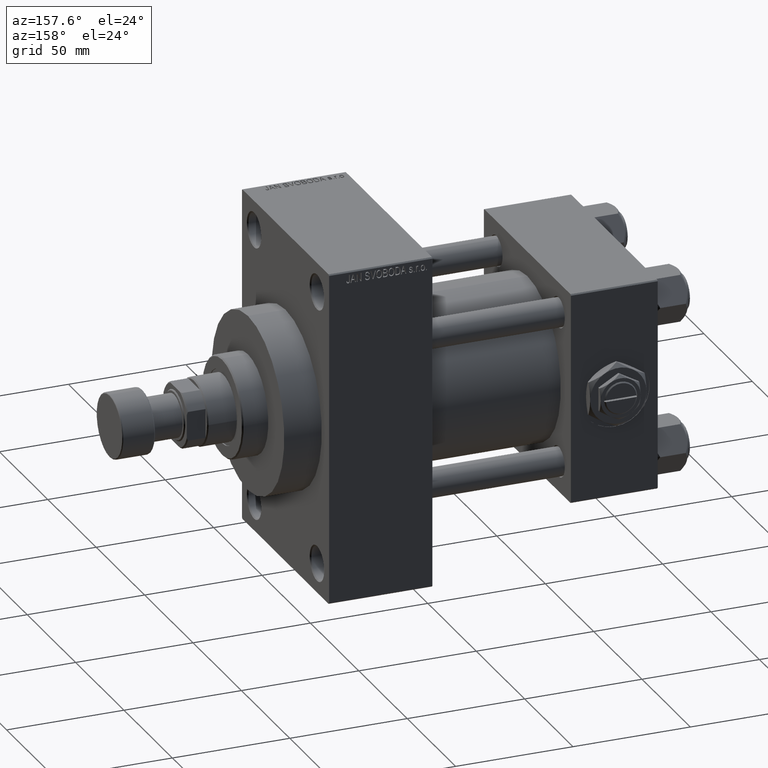
[diagram: clean part render]
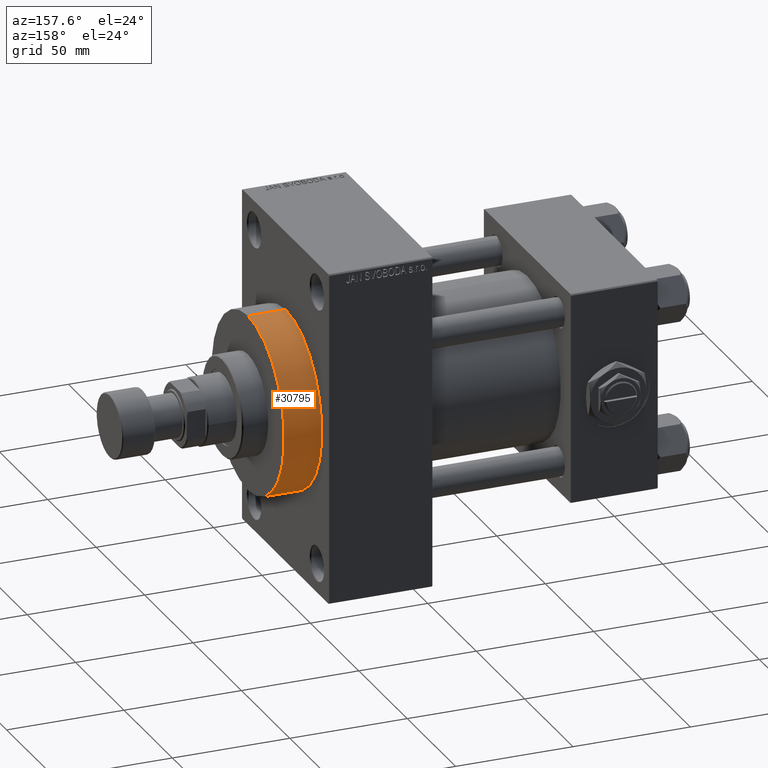
[diagram: same view with one face highlighted and labeled with its STEP entity id]
A machine part, auxiliary view. The second image highlights one B-rep face of the part: STEP entity #30795.
In plain terms, the highlighted cylindrical surface (partial cylindrical patch) has radius 37.5 mm, axis along (-1, -0, -0).
Its self-contained STEP definition (entity closure, byte-faithful):
#1142 = VECTOR ( 'NONE', #3196, 1000.000000000000000 ) ;
#2099 = ORIENTED_EDGE ( 'NONE', *, *, #21150, .F. ) ;
#2123 = CIRCLE ( 'NONE', #4493, 37.50000000000000711 ) ;
#3196 = DIRECTION ( 'NONE',  ( -1.000000000000000000, -0.000000000000000000, -0.000000000000000000 ) ) ;
#4084 = CIRCLE ( 'NONE', #48780, 37.50000000000000711 ) ;
#4331 = LINE ( 'NONE', #4589, #12384 ) ;
#4493 = AXIS2_PLACEMENT_3D ( 'NONE', #45109, #40355, #48352 ) ;
#4589 = CARTESIAN_POINT ( 'NONE',  ( 156.0000000000000284, 4.592425496802575156E-15, -37.50000000000000711 ) ) ;
#4697 = CARTESIAN_POINT ( 'NONE',  ( 156.0000000000000284, 4.592425496802575156E-15, -37.50000000000000711 ) ) ;
#4905 = ORIENTED_EDGE ( 'NONE', *, *, #10656, .F. ) ;
#6820 = ORIENTED_EDGE ( 'NONE', *, *, #47066, .T. ) ;
#10656 = EDGE_CURVE ( 'NONE', #36591, #22822, #4084, .T. ) ;
#12357 = DIRECTION ( 'NONE',  ( 0.000000000000000000, 0.000000000000000000, -1.000000000000000000 ) ) ;
#12384 = VECTOR ( 'NONE', #27070, 1000.000000000000000 ) ;
#13404 = VERTEX_POINT ( 'NONE', #29385 ) ;
#13738 = DIRECTION ( 'NONE',  ( 0.000000000000000000, 0.000000000000000000, 1.000000000000000000 ) ) ;
#17495 = DIRECTION ( 'NONE',  ( -1.000000000000000000, -0.000000000000000000, -0.000000000000000000 ) ) ;
#18121 = EDGE_LOOP ( 'NONE', ( #4905, #35540, #6820, #2099 ) ) ;
#18305 = VERTEX_POINT ( 'NONE', #26373 ) ;
#21150 = EDGE_CURVE ( 'NONE', #22822, #18305, #25932, .T. ) ;
#22822 = VERTEX_POINT ( 'NONE', #30936 ) ;
#23173 = EDGE_CURVE ( 'NONE', #36591, #13404, #4331, .T. ) ;
#25932 = LINE ( 'NONE', #37414, #1142 ) ;
#26373 = CARTESIAN_POINT ( 'NONE',  ( 140.0000000000000000, 0.000000000000000000, 37.50000000000000711 ) ) ;
#27070 = DIRECTION ( 'NONE',  ( -1.000000000000000000, -0.000000000000000000, -0.000000000000000000 ) ) ;
#29385 = CARTESIAN_POINT ( 'NONE',  ( 140.0000000000000000, 4.592425496802575156E-15, -37.50000000000000711 ) ) ;
#29580 = AXIS2_PLACEMENT_3D ( 'NONE', #44742, #17495, #13738 ) ;
#30604 = DIRECTION ( 'NONE',  ( 1.000000000000000000, 0.000000000000000000, 0.000000000000000000 ) ) ;
#30795 = ADVANCED_FACE ( 'NONE', ( #32518 ), #37238, .T. ) ;
#30936 = CARTESIAN_POINT ( 'NONE',  ( 156.0000000000000284, 0.000000000000000000, 37.50000000000000711 ) ) ;
#32518 = FACE_OUTER_BOUND ( 'NONE', #18121, .T. ) ;
#35540 = ORIENTED_EDGE ( 'NONE', *, *, #23173, .T. ) ;
#36591 = VERTEX_POINT ( 'NONE', #4697 ) ;
#37238 = CYLINDRICAL_SURFACE ( 'NONE', #29580, 37.50000000000000711 ) ;
#37414 = CARTESIAN_POINT ( 'NONE',  ( 156.0000000000000284, 0.000000000000000000, 37.50000000000000711 ) ) ;
#38845 = CARTESIAN_POINT ( 'NONE',  ( 156.0000000000000284, 0.000000000000000000, 0.000000000000000000 ) ) ;
#40355 = DIRECTION ( 'NONE',  ( 1.000000000000000000, 0.000000000000000000, 0.000000000000000000 ) ) ;
#44742 = CARTESIAN_POINT ( 'NONE',  ( 156.0000000000000284, 0.000000000000000000, 0.000000000000000000 ) ) ;
#45109 = CARTESIAN_POINT ( 'NONE',  ( 140.0000000000000000, 0.000000000000000000, 0.000000000000000000 ) ) ;
#47066 = EDGE_CURVE ( 'NONE', #13404, #18305, #2123, .T. ) ;
#48352 = DIRECTION ( 'NONE',  ( 0.000000000000000000, 0.000000000000000000, -1.000000000000000000 ) ) ;
#48780 = AXIS2_PLACEMENT_3D ( 'NONE', #38845, #30604, #12357 ) ;